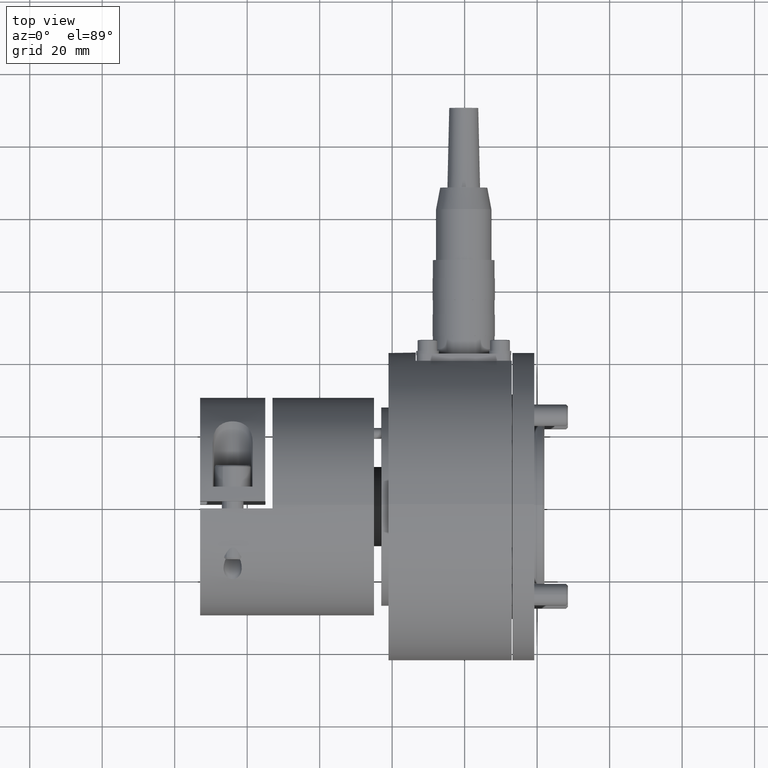
[diagram: clean part render]
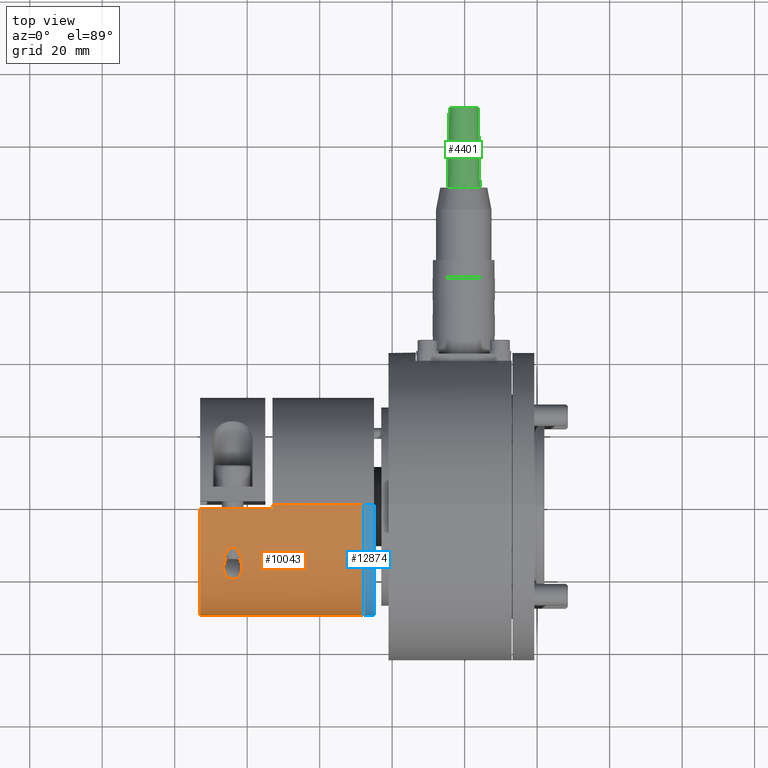
[diagram: same view with three faces highlighted in distinct colors, each labeled with its STEP entity id]
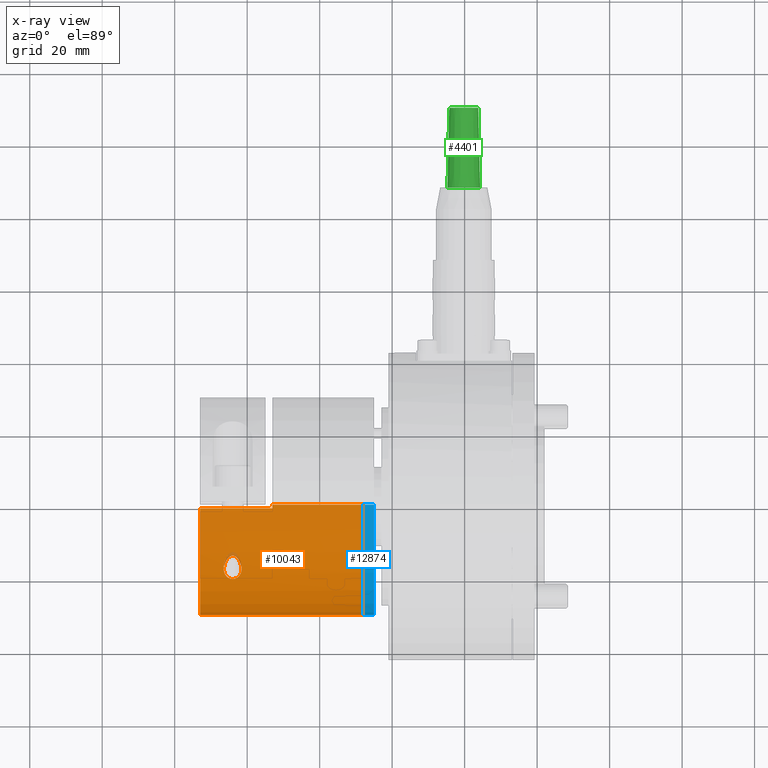
[diagram: x-ray of the same camera — body ghosted, the three highlighted faces saturated]
A machine part, top view with three faces highlighted in distinct colors.
The next image is the same camera in x-ray (body ghosted, the three faces saturated) — at least one of them is partly hidden behind the body in this view.
Their STEP definitions:

[orange] entity #10043 — the highlighted cylindrical surface (partial cylindrical patch) has radius 30 mm, axis along (1, 0, 0).
#63 = CARTESIAN_POINT ( 'NONE',  ( 35.54403130544288558, -13.15764013668180610, -26.96067083644440032 ) ) ;
#99 = EDGE_CURVE ( 'NONE', #7087, #18892, #10793, .T. ) ;
#199 = CARTESIAN_POINT ( 'NONE',  ( 35.76408599306877534, -20.39607805437113441, -22.00000000000001066 ) ) ;
#263 = CARTESIAN_POINT ( 'NONE',  ( 34.03343299537669253, -19.32475668754031517, -22.94773513613678517 ) ) ;
#388 = CARTESIAN_POINT ( 'NONE',  ( 35.53760434968018700, -20.36077404736876773, -22.03286248311609086 ) ) ;
#475 = VERTEX_POINT ( 'NONE', #8121 ) ;
#550 = EDGE_CURVE ( 'NONE', #475, #4645, #6410, .T. ) ;
#551 = CARTESIAN_POINT ( 'NONE',  ( 37.85599759558347444, -19.48080813370034292, -22.81523536716307632 ) ) ;
#600 = VERTEX_POINT ( 'NONE', #14495 ) ;
#623 = EDGE_CURVE ( 'NONE', #4307, #4998, #15329, .T. ) ;
#729 = CARTESIAN_POINT ( 'NONE',  ( 36.11634415302829382, -13.07669683062198729, -27.00000000000000711 ) ) ;
#752 = CARTESIAN_POINT ( 'NONE',  ( 36.45809840492726295, -20.35322536426288309, 22.03966328793654839 ) ) ;
#859 = CARTESIAN_POINT ( 'NONE',  ( 8.050388051616229390, -19.71798243178388432, 22.61000125630623003 ) ) ;
#879 = VECTOR ( 'NONE', #8178, 1000.000000000000000 ) ;
#890 = CARTESIAN_POINT ( 'NONE',  ( -9.653853281810471643, 0.000000000000000000, 0.000000000000000000 ) ) ;
#973 = CARTESIAN_POINT ( 'NONE',  ( 35.10277254796164925, -20.22703264770207099, 22.15570725160227639 ) ) ;
#982 = ORIENTED_EDGE ( 'NONE', *, *, #8102, .T. ) ;
#990 = CARTESIAN_POINT ( 'NONE',  ( 36.85659834316125227, -13.36723720463445808, -26.85762360968974960 ) ) ;
#1065 = DIRECTION ( 'NONE',  ( 0.000000000000000000, 0.000000000000000000, 1.000000000000000000 ) ) ;
#1186 = CARTESIAN_POINT ( 'NONE',  ( 8.053247955870300956, -22.60949184848589866, 19.71856837036116872 ) ) ;
#1201 = CARTESIAN_POINT ( 'NONE',  ( 0.000000000000000000, 0.000000000000000000, 0.000000000000000000 ) ) ;
#1299 = CARTESIAN_POINT ( 'NONE',  ( 38.15214006560779580, -19.00000907116052673, 23.21733092695185263 ) ) ;
#1313 = CARTESIAN_POINT ( 'NONE',  ( 24.99999999999999645, 0.000000000000000000, 0.000000000000000000 ) ) ;
#1322 = AXIS2_PLACEMENT_3D ( 'NONE', #4834, #1804, #16760 ) ;
#1399 = CARTESIAN_POINT ( 'NONE',  ( 33.74519410774001926, -15.66326118771873688, -25.58734810933013293 ) ) ;
#1586 = CARTESIAN_POINT ( 'NONE',  ( 35.43942614881169817, -13.20304902364685340, -26.93850896033865894 ) ) ;
#1698 = EDGE_LOOP ( 'NONE', ( #1972, #982 ) ) ;
#1784 = EDGE_CURVE ( 'NONE', #6906, #3676, #4431, .T. ) ;
#1804 = DIRECTION ( 'NONE',  ( -1.000000000000000000, -0.000000000000000000, -0.000000000000000000 ) ) ;
#1874 = EDGE_CURVE ( 'NONE', #4107, #11514, #18491, .T. ) ;
#1972 = ORIENTED_EDGE ( 'NONE', *, *, #550, .T. ) ;
#1985 = CARTESIAN_POINT ( 'NONE',  ( 5.399951019170280198, -21.11685314552640946, 21.30955857452089930 ) ) ;
#2056 = CARTESIAN_POINT ( 'NONE',  ( 5.916764265090246333, -20.21019176594783318, 22.17110251399250842 ) ) ;
#2142 = DIRECTION ( 'NONE',  ( 1.000000000000000000, 0.000000000000000000, 0.000000000000000000 ) ) ;
#2182 = CARTESIAN_POINT ( 'NONE',  ( 5.677929886991131880, -20.45571093135717433, 21.94485935220675543 ) ) ;
#2248 = CARTESIAN_POINT ( 'NONE',  ( 38.24517357150050856, -18.83693687243285453, -23.35268812621419343 ) ) ;
#2252 = CARTESIAN_POINT ( 'NONE',  ( 6.954521571183967410, -19.72723343274339669, 22.60170315644595362 ) ) ;
#2348 = CARTESIAN_POINT ( 'NONE',  ( 8.790163230429689278, -19.99285569627467751, 22.36790642746595736 ) ) ;
#2518 = CARTESIAN_POINT ( 'NONE',  ( 35.42785093954138631, -20.32715191897705509, 22.06374737550954279 ) ) ;
#2540 = CARTESIAN_POINT ( 'NONE',  ( 9.533412983282273601, -21.59332378777918748, 20.82657874129382947 ) ) ;
#2548 = CARTESIAN_POINT ( 'NONE',  ( 36.00000000000000711, -13.07669683062227151, 27.00000000000002487 ) ) ;
#2585 = CARTESIAN_POINT ( 'NONE',  ( 35.14174589274028193, -13.36850734203602897, 26.85699216930185074 ) ) ;
#2605 = CARTESIAN_POINT ( 'NONE',  ( 37.10514268870819876, -13.59271204247487397, 26.74408264683101422 ) ) ;
#2621 = CARTESIAN_POINT ( 'NONE',  ( 7.500000000000000000, -19.67624302409927139, 22.64609150508282909 ) ) ;
#2622 = DIRECTION ( 'NONE',  ( -1.000000000000000000, -0.000000000000000000, -0.000000000000000000 ) ) ;
#2661 = CARTESIAN_POINT ( 'NONE',  ( 38.22861321011357916, -18.82811773892880325, 23.35705405547113500 ) ) ;
#2735 = CARTESIAN_POINT ( 'NONE',  ( 9.169452788030255874, -20.28797255858072646, 22.10002741749822874 ) ) ;
#2756 = CARTESIAN_POINT ( 'NONE',  ( 34.97572533438203379, -13.51693487034870955, -26.78242922220515965 ) ) ;
#2803 = CARTESIAN_POINT ( 'NONE',  ( 9.586569503635979927, -21.40611070378705350, 21.01895427485382939 ) ) ;
#2820 = DIRECTION ( 'NONE',  ( -1.000000000000000000, 0.000000000000000000, 0.000000000000000000 ) ) ;
#2825 = CARTESIAN_POINT ( 'NONE',  ( 34.30647323838091722, -14.35189158418099709, -26.34507634120158315 ) ) ;
#2889 = CARTESIAN_POINT ( 'NONE',  ( 33.53307291488608399, -16.61453878675507312, -24.98342915950209431 ) ) ;
#3002 = EDGE_CURVE ( 'NONE', #11161, #5378, #12203, .T. ) ;
#3235 = FACE_BOUND ( 'NONE', #12058, .T. ) ;
#3339 = EDGE_LOOP ( 'NONE', ( #4364, #12761 ) ) ;
#3500 = B_SPLINE_CURVE_WITH_KNOTS ( 'NONE', 3,
 ( #5870, #4541, #16281, #63, #1586, #19427, #10444, #2756, #13253, #4289, #17783, #2825, #16351, #17853, #8882, #19358, #1399, #13459, #2889, #4412, #16847, #7655, #15103, #263, #9217, #12259, #12316, #15171, #16781, #388, #199, #4603 ),
 .UNSPECIFIED., .F., .F.,
 ( 4, 2, 2, 2, 2, 2, 2, 2, 2, 2, 2, 2, 2, 2, 2, 4 ),
 ( 0.01110041904918949128, 0.01144809869222177152, 0.01179577833525405350, 0.01214345797828633375, 0.01249113762131861399, 0.01318649690738319183, 0.01388185619344777140, 0.01457721547951234924, 0.01527257476557692707, 0.01666329333770610183, 0.01805401190983527832, 0.01944473048196445480, 0.02014008976802904652, 0.02083544905409364170, 0.02153080834015823689, 0.02222616762622283207 ),
 .UNSPECIFIED. ) ;
#3519 = CARTESIAN_POINT ( 'NONE',  ( 36.23537691134919925, -20.39607805437113086, -22.00000000000001421 ) ) ;
#3523 = CARTESIAN_POINT ( 'NONE',  ( 5.413616891070321735, -21.01775926357863966, 21.40728707709009626 ) ) ;
#3548 = EDGE_CURVE ( 'NONE', #4998, #4307, #18331, .T. ) ;
#3587 = CARTESIAN_POINT ( 'NONE',  ( 6.569147713251338061, -19.83658000979079006, 22.50584106918732630 ) ) ;
#3652 = CARTESIAN_POINT ( 'NONE',  ( 6.956257584775492830, -22.60199293863285774, 19.72690119807969111 ) ) ;
#3676 = VERTEX_POINT ( 'NONE', #5501 ) ;
#3721 = CARTESIAN_POINT ( 'NONE',  ( 5.829968255449136549, -20.28856347131808135, 22.09948311535089971 ) ) ;
#3916 = CARTESIAN_POINT ( 'NONE',  ( 33.75456495062579165, -18.83623518361320848, 23.35325185157929795 ) ) ;
#4107 = VERTEX_POINT ( 'NONE', #4881 ) ;
#4126 = CARTESIAN_POINT ( 'NONE',  ( 38.06735434347587699, -15.08921624168724307, 25.93251678761911450 ) ) ;
#4131 = CARTESIAN_POINT ( 'NONE',  ( 9.599887512783961796, -21.11400427086853426, 21.31239146466164769 ) ) ;
#4275 = CARTESIAN_POINT ( 'NONE',  ( 9.493195183361935463, -21.68558841424887973, 20.73044786103286796 ) ) ;
#4282 = EDGE_CURVE ( 'NONE', #5378, #6887, #8403, .T. ) ;
#4289 = CARTESIAN_POINT ( 'NONE',  ( 34.66971698157021109, -13.82811041623600445, -26.62357391991033495 ) ) ;
#4307 = VERTEX_POINT ( 'NONE', #2621 ) ;
#4325 = CARTESIAN_POINT ( 'NONE',  ( 37.69447132693836267, -14.35344217299058656, 26.34423547105264518 ) ) ;
#4329 = CARTESIAN_POINT ( 'NONE',  ( 9.082767666520947358, -22.17134987099493060, 20.20991500627982873 ) ) ;
#4364 = ORIENTED_EDGE ( 'NONE', *, *, #99, .T. ) ;
#4412 = CARTESIAN_POINT ( 'NONE',  ( 33.48649451730572935, -17.37805972478663108, -24.45848874861645328 ) ) ;
#4431 = LINE ( 'NONE', #15145, #10986 ) ;
#4529 = CARTESIAN_POINT ( 'NONE',  ( 24.99999999999999645, 0.000000000000000000, 30.00000000000000000 ) ) ;
#4537 = CARTESIAN_POINT ( 'NONE',  ( 35.99999999999953815, -13.07669683062154498, -27.00000000000023448 ) ) ;
#4541 = CARTESIAN_POINT ( 'NONE',  ( 35.88339036668130433, -13.07669683062207078, -26.99999999999997868 ) ) ;
#4603 = CARTESIAN_POINT ( 'NONE',  ( 36.00000000000000000, -20.39607805437112731, -22.00000000000001066 ) ) ;
#4645 = VERTEX_POINT ( 'NONE', #4537 ) ;
#4834 = CARTESIAN_POINT ( 'NONE',  ( 45.00000000000000000, 0.000000000000000000, 0.000000000000000000 ) ) ;
#4881 = CARTESIAN_POINT ( 'NONE',  ( 45.00000000000000000, -1.000000000000000444, -29.98332870112989568 ) ) ;
#4888 = ORIENTED_EDGE ( 'NONE', *, *, #1874, .T. ) ;
#4998 = VERTEX_POINT ( 'NONE', #8092 ) ;
#5018 = CARTESIAN_POINT ( 'NONE',  ( 36.89567724093629408, -20.22760951571456545, -22.15517897535722724 ) ) ;
#5024 = CARTESIAN_POINT ( 'NONE',  ( 6.112790530821605728, -20.06465382949635057, 22.30289901794895613 ) ) ;
#5140 = LINE ( 'NONE', #18827, #12632 ) ;
#5219 = CARTESIAN_POINT ( 'NONE',  ( 5.612162170226675073, -20.54554845541357011, 21.86084670257604046 ) ) ;
#5292 = CARTESIAN_POINT ( 'NONE',  ( 34.55693531138594921, -19.90198451976577942, 22.44849183637207446 ) ) ;
#5378 = VERTEX_POINT ( 'NONE', #4529 ) ;
#5444 = CARTESIAN_POINT ( 'NONE',  ( 33.93270928708697909, -15.08878819167141927, 25.93278706445213899 ) ) ;
#5501 = CARTESIAN_POINT ( 'NONE',  ( 0.000000000000000000, 3.673940397442059967E-15, -30.00000000000000711 ) ) ;
#5503 = AXIS2_PLACEMENT_3D ( 'NONE', #17848, #2820, #13322 ) ;
#5773 = CARTESIAN_POINT ( 'NONE',  ( 38.20553756739808904, -15.47446950072273886, 25.70490763626187203 ) ) ;
#5777 = CARTESIAN_POINT ( 'NONE',  ( 9.600111120466346293, -21.31000663040397214, 21.11641124115025647 ) ) ;
#5853 = CARTESIAN_POINT ( 'NONE',  ( 8.889167738303978439, -22.30164922157576868, 20.06603751767924493 ) ) ;
#5870 = CARTESIAN_POINT ( 'NONE',  ( 35.99999999999953815, -13.07669683062154498, -27.00000000000023448 ) ) ;
#5873 = VECTOR ( 'NONE', #13149, 1000.000000000000000 ) ;
#6108 = CARTESIAN_POINT ( 'NONE',  ( 37.44009406900512715, -19.90428179142540444, 22.44645024161019364 ) ) ;
#6410 = B_SPLINE_CURVE_WITH_KNOTS ( 'NONE', 3,
 ( #13939, #3519, #14002, #5018, #17013, #18532, #9550, #551, #11062, #2248, #7303, #9043, #17237, #9964, #8292, #9704, #15875, #18894, #18962, #8422, #18758, #12836, #990, #17377, #9906, #14426, #729, #9770 ),
 .UNSPECIFIED., .F., .F.,
 ( 4, 2, 2, 2, 2, 2, 2, 2, 2, 2, 2, 2, 2, 4 ),
 ( 0.000000000000000000, 0.0006937761905743366998, 0.001387552381148673400, 0.002081328571723009991, 0.002775104762297346799, 0.004162657143446035594, 0.005550209524594723089, 0.006937761905743411450, 0.008325314286892100679, 0.009019090477466448763, 0.009712866668040795112, 0.01040664285861514320, 0.01075353095390231897, 0.01110041904918949128 ),
 .UNSPECIFIED. ) ;
#6455 = CARTESIAN_POINT ( 'NONE',  ( 0.000000000000000000, 0.000000000000000000, 30.00000000000000355 ) ) ;
#6623 = CARTESIAN_POINT ( 'NONE',  ( 5.821142335571173554, -22.10681613286423541, 20.28118102899367869 ) ) ;
#6687 = CARTESIAN_POINT ( 'NONE',  ( 7.361202440361829247, -22.64609150508276869, 19.67624302409936021 ) ) ;
#6826 = CARTESIAN_POINT ( 'NONE',  ( 6.822857300636626654, -22.57536873068187333, 19.75741678296466119 ) ) ;
#6834 = CARTESIAN_POINT ( 'NONE',  ( 34.54109359959257830, -13.99621901585741313, 26.53575458206941207 ) ) ;
#6887 = VERTEX_POINT ( 'NONE', #6455 ) ;
#6890 = CARTESIAN_POINT ( 'NONE',  ( 36.88844262200682778, -20.22138937281719961, 22.16076094512581918 ) ) ;
#6899 = CARTESIAN_POINT ( 'NONE',  ( 34.03255055075983648, -19.32336106694990718, 22.94890518216946163 ) ) ;
#6906 = VERTEX_POINT ( 'NONE', #16858 ) ;
#7087 = VERTEX_POINT ( 'NONE', #2548 ) ;
#7112 = CARTESIAN_POINT ( 'NONE',  ( 36.46313121252222800, -13.14879111047487825, 26.96524192666000985 ) ) ;
#7115 = CARTESIAN_POINT ( 'NONE',  ( 8.783575025467426300, -22.35975942582060938, 20.00117678045440783 ) ) ;
#7256 = FACE_OUTER_BOUND ( 'NONE', #9660, .T. ) ;
#7303 = CARTESIAN_POINT ( 'NONE',  ( 38.36318796891579552, -18.48017176730698097, -23.63663672635370361 ) ) ;
#7305 = CARTESIAN_POINT ( 'NONE',  ( 38.46699535813548465, -16.61662256972484997, 24.98197765890463984 ) ) ;
#7393 = CARTESIAN_POINT ( 'NONE',  ( 35.99999999999989342, -20.39607805437118770, 21.99999999999995737 ) ) ;
#7504 = DIRECTION ( 'NONE',  ( -1.000000000000000000, -0.000000000000000000, -0.000000000000000000 ) ) ;
#7551 = LINE ( 'NONE', #8655, #5873 ) ;
#7655 = CARTESIAN_POINT ( 'NONE',  ( 33.63659722610097447, -18.47948538625313120, -23.63717877275215784 ) ) ;
#7901 = ORIENTED_EDGE ( 'NONE', *, *, #623, .T. ) ;
#8065 = CARTESIAN_POINT ( 'NONE',  ( 7.223696195201902981, -19.68664490157274471, 22.63706555632657214 ) ) ;
#8092 = CARTESIAN_POINT ( 'NONE',  ( 7.500000000000000000, -22.64609150508276514, 19.67624302409934955 ) ) ;
#8102 = EDGE_CURVE ( 'NONE', #4645, #475, #3500, .T. ) ;
#8104 = AXIS2_PLACEMENT_3D ( 'NONE', #1201, #2622, #1065 ) ;
#8121 = CARTESIAN_POINT ( 'NONE',  ( 36.00000000000000000, -20.39607805437112731, -22.00000000000001066 ) ) ;
#8178 = DIRECTION ( 'NONE',  ( -1.000000000000000000, -0.000000000000000000, -0.000000000000000000 ) ) ;
#8203 = CARTESIAN_POINT ( 'NONE',  ( 5.506936449903147235, -20.73018666546440869, 21.68583732997826630 ) ) ;
#8292 = CARTESIAN_POINT ( 'NONE',  ( 38.40442604883820366, -16.23492132184638592, -25.23151432158067919 ) ) ;
#8400 = CARTESIAN_POINT ( 'NONE',  ( 33.63667113201717029, -18.47963030384479666, 23.63705726207231805 ) ) ;
#8403 = LINE ( 'NONE', #17125, #879 ) ;
#8418 = EDGE_CURVE ( 'NONE', #6906, #600, #12208, .T. ) ;
#8422 = CARTESIAN_POINT ( 'NONE',  ( 37.45797773958720711, -13.99494657319657875, -26.53642585680615440 ) ) ;
#8467 = CARTESIAN_POINT ( 'NONE',  ( 35.88368538321566348, -20.39607805437112020, 22.00000000000001421 ) ) ;
#8586 = CARTESIAN_POINT ( 'NONE',  ( 33.59551646412336368, -16.23528600519121667, 25.23127550043539458 ) ) ;
#8607 = CARTESIAN_POINT ( 'NONE',  ( 7.500000000000000000, -22.64609150508276514, 19.67624302409934955 ) ) ;
#8655 = CARTESIAN_POINT ( 'NONE',  ( -9.653853281810471643, -0.9999999999999988898, 29.98332870112989212 ) ) ;
#8680 = CARTESIAN_POINT ( 'NONE',  ( 9.171359846319628417, -22.09833214602731033, 20.28981901124419807 ) ) ;
#8738 = CARTESIAN_POINT ( 'NONE',  ( 9.322048568467932839, -20.45564184618385895, 21.94492558776514812 ) ) ;
#8796 = CARTESIAN_POINT ( 'NONE',  ( 38.39635213734254648, -18.29932477879136599, 23.77365590205245027 ) ) ;
#8799 = CARTESIAN_POINT ( 'NONE',  ( 8.432093946250290628, -22.50538862898929793, 19.83709272333016216 ) ) ;
#8857 = EDGE_CURVE ( 'NONE', #18892, #7087, #12070, .T. ) ;
#8873 = DIRECTION ( 'NONE',  ( 0.000000000000000000, 0.000000000000000000, 1.000000000000000000 ) ) ;
#8882 = CARTESIAN_POINT ( 'NONE',  ( 33.94294079543363551, -15.09460535327318986, -25.92684585813091402 ) ) ;
#8978 = EDGE_CURVE ( 'NONE', #11514, #11161, #7551, .T. ) ;
#9043 = CARTESIAN_POINT ( 'NONE',  ( 38.49636620563748579, -17.75429333462718517, -24.18661639152519882 ) ) ;
#9065 = AXIS2_PLACEMENT_3D ( 'NONE', #890, #15981, #15906 ) ;
#9217 = CARTESIAN_POINT ( 'NONE',  ( 34.14492504964775321, -19.48194992579282570, -22.81425661019097006 ) ) ;
#9488 = CARTESIAN_POINT ( 'NONE',  ( 7.500000000000000000, -22.64609150508276514, 19.67624302409934955 ) ) ;
#9550 = CARTESIAN_POINT ( 'NONE',  ( 37.59227195770927210, -19.77118210803321929, -22.56406896931671113 ) ) ;
#9660 = EDGE_LOOP ( 'NONE', ( #18038, #19114, #16095, #4888, #15328, #12081, #14084, #12342 ) ) ;
#9704 = CARTESIAN_POINT ( 'NONE',  ( 38.20470176304846888, -15.47182261984939977, -25.70651065599122020 ) ) ;
#9742 = CARTESIAN_POINT ( 'NONE',  ( 6.446384952211624331, -19.88598597413896840, 22.46226532258497244 ) ) ;
#9748 = CARTESIAN_POINT ( 'NONE',  ( 34.20524229729677046, -14.53274498227888145, 26.24584856288481660 ) ) ;
#9770 = CARTESIAN_POINT ( 'NONE',  ( 35.99999999999953815, -13.07669683062154498, -27.00000000000023448 ) ) ;
#9824 = CARTESIAN_POINT ( 'NONE',  ( 33.48654048068633671, -17.38157899537326756, 24.45598570427973328 ) ) ;
#9891 = CARTESIAN_POINT ( 'NONE',  ( 33.79505814167709588, -15.47259514341117814, 25.70604159681762724 ) ) ;
#9906 = CARTESIAN_POINT ( 'NONE',  ( 36.45302881729313782, -13.15673440856591014, -26.96111182653448068 ) ) ;
#9964 = CARTESIAN_POINT ( 'NONE',  ( 38.46737965062658304, -16.61789723448560707, -24.98119944198819553 ) ) ;
#10043 = ADVANCED_FACE ( 'NONE', ( #7256, #3235, #18247, #16620 ), #14262, .T. ) ;
#10092 = CARTESIAN_POINT ( 'NONE',  ( 37.46213815446620288, -14.00072759769704867, 26.53336901908119572 ) ) ;
#10153 = CARTESIAN_POINT ( 'NONE',  ( 9.323466698358155114, -21.94323569480162561, 20.45745454321172119 ) ) ;
#10199 = CARTESIAN_POINT ( 'NONE',  ( 34.97003614068877653, -13.51417719926148564, 26.78428395338516310 ) ) ;
#10291 = CARTESIAN_POINT ( 'NONE',  ( 38.35052744246493006, -18.47788787857473380, 23.63509363823184017 ) ) ;
#10340 = CARTESIAN_POINT ( 'NONE',  ( 35.53711436873646079, -13.14865470787962742, 26.96530912689426529 ) ) ;
#10444 = CARTESIAN_POINT ( 'NONE',  ( 35.14785877451151208, -13.37795189328988421, -26.85212182440150031 ) ) ;
#10454 = CIRCLE ( 'NONE', #8104, 30.00000000000000355 ) ;
#10793 = B_SPLINE_CURVE_WITH_KNOTS ( 'NONE', 3,
 ( #17633, #13025, #7112, #19141, #17496, #13230, #2605, #11731, #10092, #4325, #14757, #4126, #5773, #14624, #7305, #19279, #17757, #8796, #10291, #2661, #1299, #13303, #14825, #12045, #6108, #15282, #18273, #6890, #15453, #15639, #752, #15522, #14717, #7393 ),
 .UNSPECIFIED., .F., .F.,
 ( 4, 2, 2, 2, 2, 2, 2, 2, 2, 2, 2, 2, 2, 2, 2, 2, 4 ),
 ( 7.050749370775813149E-17, 0.0006968621591076512318, 0.001045293238661440310, 0.001393724318215229388, 0.002090586477322807762, 0.002787448636430385918, 0.004181172954645542665, 0.005574897272860695509, 0.006968621591075848352, 0.007665483750183428244, 0.008362345909291009002, 0.009059208068398588026, 0.009756070227506167050, 0.01010450130705996263, 0.01045293238661375822, 0.01080136346616755380, 0.01114979454572134765 ),
 .UNSPECIFIED. ) ;
#10986 = VECTOR ( 'NONE', #7504, 1000.000000000000000 ) ;
#11062 = CARTESIAN_POINT ( 'NONE',  ( 37.96690485198661236, -19.32419319876482788, -22.94820506228913004 ) ) ;
#11066 = CARTESIAN_POINT ( 'NONE',  ( 6.219668528706750799, -22.36138455129565372, 19.99935771579663779 ) ) ;
#11124 = CARTESIAN_POINT ( 'NONE',  ( 6.447929059487561787, -22.46288029968400579, 19.88529197013176386 ) ) ;
#11161 = VERTEX_POINT ( 'NONE', #15198 ) ;
#11197 = CARTESIAN_POINT ( 'NONE',  ( 7.224733051604038891, -22.63713941487447201, 19.68655974994981506 ) ) ;
#11353 = CARTESIAN_POINT ( 'NONE',  ( 8.555843981380760965, -19.87550317785966669, 22.47165684628521376 ) ) ;
#11514 = VERTEX_POINT ( 'NONE', #14185 ) ;
#11544 = CARTESIAN_POINT ( 'NONE',  ( 9.586192875783405398, -21.01689981032182075, 21.40812787738621026 ) ) ;
#11731 = CARTESIAN_POINT ( 'NONE',  ( 37.33028637808858008, -13.82821087149201134, 26.62351767243061929 ) ) ;
#11844 = CARTESIAN_POINT ( 'NONE',  ( 35.76405993019931628, -13.07669683062203347, 26.99999999999998579 ) ) ;
#12045 = CARTESIAN_POINT ( 'NONE',  ( 37.59138569244880301, -19.77208482503668918, 22.56328299299559603 ) ) ;
#12058 = EDGE_LOOP ( 'NONE', ( #14572, #7901 ) ) ;
#12070 = B_SPLINE_CURVE_WITH_KNOTS ( 'NONE', 3,
 ( #14281, #8467, #14408, #18942, #2518, #973, #15857, #5292, #12949, #17551, #6899, #3916, #8400, #14474, #9824, #18873, #8586, #9891, #5444, #9748, #15794, #6834, #17289, #10199, #2585, #10340, #11844, #16375 ),
 .UNSPECIFIED., .F., .F.,
 ( 4, 2, 2, 2, 2, 2, 2, 2, 2, 2, 2, 2, 2, 4 ),
 ( 0.01114979454572134765, 0.01149795092838507872, 0.01184610731104881153, 0.01254242007637628060, 0.01323873284170374968, 0.01393504560703121876, 0.01532767113768615866, 0.01672029666834109682, 0.01811292219899603845, 0.01950554772965098355, 0.02020186049497845610, 0.02089817326030592518, 0.02159448602563339772, 0.02229079879096087027 ),
 .UNSPECIFIED. ) ;
#12081 = ORIENTED_EDGE ( 'NONE', *, *, #3002, .T. ) ;
#12203 = CIRCLE ( 'NONE', #5503, 30.00000000000000000 ) ;
#12208 = CIRCLE ( 'NONE', #17680, 30.00000000000000000 ) ;
#12259 = CARTESIAN_POINT ( 'NONE',  ( 34.40825293860283551, -19.77163343106848359, -22.56366967171333471 ) ) ;
#12316 = CARTESIAN_POINT ( 'NONE',  ( 34.55857495603410001, -19.90338543958648287, -22.44725216242035515 ) ) ;
#12342 = ORIENTED_EDGE ( 'NONE', *, *, #14764, .F. ) ;
#12491 = CARTESIAN_POINT ( 'NONE',  ( 5.467258828292914430, -20.82467628626860545, 21.59516154222553652 ) ) ;
#12548 = CARTESIAN_POINT ( 'NONE',  ( 6.218961404439988350, -19.99978946317342476, 22.36099780901095713 ) ) ;
#12549 = EDGE_CURVE ( 'NONE', #600, #4107, #5140, .T. ) ;
#12632 = VECTOR ( 'NONE', #2142, 1000.000000000000000 ) ;
#12761 = ORIENTED_EDGE ( 'NONE', *, *, #8857, .T. ) ;
#12836 = CARTESIAN_POINT ( 'NONE',  ( 37.02845214737822488, -13.51279814098841925, -26.78497994489562117 ) ) ;
#12949 = CARTESIAN_POINT ( 'NONE',  ( 34.40679361711627848, -19.77028763855562232, 22.56485213677640189 ) ) ;
#13025 = CARTESIAN_POINT ( 'NONE',  ( 36.23612622753501711, -13.07669683062203170, 26.99999999999998579 ) ) ;
#13149 = DIRECTION ( 'NONE',  ( -1.000000000000000000, -0.000000000000000000, -0.000000000000000000 ) ) ;
#13230 = CARTESIAN_POINT ( 'NONE',  ( 37.02532313074250681, -13.51784452054103447, 26.78197103811618263 ) ) ;
#13234 = CARTESIAN_POINT ( 'NONE',  ( 9.080750645005441157, -20.20822154972524487, 22.17289248174906291 ) ) ;
#13253 = CARTESIAN_POINT ( 'NONE',  ( 34.89578590685911763, -13.59178950792956897, -26.74455251935003020 ) ) ;
#13303 = CARTESIAN_POINT ( 'NONE',  ( 37.96593993087869023, -19.32571375563456328, 22.94692981448835312 ) ) ;
#13308 = CARTESIAN_POINT ( 'NONE',  ( 9.387895750223863800, -21.86078030232767944, 20.54561992164191153 ) ) ;
#13322 = DIRECTION ( 'NONE',  ( 0.000000000000000000, 0.000000000000000000, 1.000000000000000000 ) ) ;
#13459 = CARTESIAN_POINT ( 'NONE',  ( 33.59593662787168711, -16.23353026123997367, -25.23238063418413901 ) ) ;
#13939 = CARTESIAN_POINT ( 'NONE',  ( 36.00000000000000000, -20.39607805437112731, -22.00000000000001066 ) ) ;
#14002 = CARTESIAN_POINT ( 'NONE',  ( 36.46348548831758762, -20.36051881642763561, -22.03309818605258386 ) ) ;
#14084 = ORIENTED_EDGE ( 'NONE', *, *, #4282, .T. ) ;
#14140 = CARTESIAN_POINT ( 'NONE',  ( 6.823597933132545812, -19.75722431448976479, 22.57553711660667162 ) ) ;
#14185 = CARTESIAN_POINT ( 'NONE',  ( 45.00000000000000000, -1.000000000000000444, 29.98332870112988502 ) ) ;
#14262 = CYLINDRICAL_SURFACE ( 'NONE', #9065, 30.00000000000000000 ) ;
#14281 = CARTESIAN_POINT ( 'NONE',  ( 35.99999999999989342, -20.39607805437118770, 21.99999999999995737 ) ) ;
#14408 = CARTESIAN_POINT ( 'NONE',  ( 35.76595399513405482, -20.38709376648254690, 22.00833840752609305 ) ) ;
#14426 = CARTESIAN_POINT ( 'NONE',  ( 36.23325910767670166, -13.09414464103760523, -26.99156511468027730 ) ) ;
#14474 = CARTESIAN_POINT ( 'NONE',  ( 33.50361667174818336, -17.75397324315987646, 24.18684862189423157 ) ) ;
#14495 = CARTESIAN_POINT ( 'NONE',  ( 24.99999999999999645, -0.9999999999999995559, -29.98332870112989212 ) ) ;
#14572 = ORIENTED_EDGE ( 'NONE', *, *, #3548, .T. ) ;
#14624 = CARTESIAN_POINT ( 'NONE',  ( 38.40471593990264410, -16.23657854920496746, 25.23043796554174278 ) ) ;
#14717 = CARTESIAN_POINT ( 'NONE',  ( 36.11640638951927684, -20.39607805437113086, 22.00000000000000711 ) ) ;
#14757 = CARTESIAN_POINT ( 'NONE',  ( 37.79587904836974133, -14.53488467447532884, 26.24465842665587090 ) ) ;
#14764 = EDGE_CURVE ( 'NONE', #3676, #6887, #10454, .T. ) ;
#14825 = CARTESIAN_POINT ( 'NONE',  ( 37.85605156739919863, -19.48082158025043853, 22.81522886821212026 ) ) ;
#14903 = DIRECTION ( 'NONE',  ( -1.000000000000000000, 0.000000000000000000, 0.000000000000000000 ) ) ;
#15103 = CARTESIAN_POINT ( 'NONE',  ( 33.75446133064492926, -18.83635371181874874, -23.35317653954030703 ) ) ;
#15145 = CARTESIAN_POINT ( 'NONE',  ( -9.653853281810471643, 3.673940397442059178E-15, -30.00000000000000000 ) ) ;
#15171 = CARTESIAN_POINT ( 'NONE',  ( 34.90983650185621201, -20.13358471292334784, -22.24101275139170397 ) ) ;
#15198 = CARTESIAN_POINT ( 'NONE',  ( 24.99999999999999645, -0.9999999999999995559, 29.98332870112989212 ) ) ;
#15282 = CARTESIAN_POINT ( 'NONE',  ( 37.17836231126701563, -20.07577154775027850, 22.29280797214492793 ) ) ;
#15328 = ORIENTED_EDGE ( 'NONE', *, *, #8978, .T. ) ;
#15329 = B_SPLINE_CURVE_WITH_KNOTS ( 'NONE', 3,
 ( #15813, #18826, #859, #11353, #2348, #13234, #2735, #8738, #17636, #17570, #16074, #11544, #4131, #5777, #2803, #2540, #4275, #13308, #10153, #8680, #4329, #5853, #7115, #16264, #8799, #1186, #16201, #8607 ),
 .UNSPECIFIED., .F., .F.,
 ( 4, 2, 2, 2, 2, 2, 2, 2, 2, 2, 2, 2, 2, 4 ),
 ( 0.006567564609340414625, 0.007388321336801337465, 0.008209078064262260305, 0.008619456427992720424, 0.009029834791723180543, 0.009440213155453642396, 0.009850591519184102515, 0.01026096988291456437, 0.01067134824664502622, 0.01108172661037548634, 0.01149210497410594820, 0.01190248333783641005, 0.01231286170156687190, 0.01313361842902779734 ),
 .UNSPECIFIED. ) ;
#15453 = CARTESIAN_POINT ( 'NONE',  ( 36.78603036476732058, -20.26138013044937480, 22.12416056875661852 ) ) ;
#15522 = CARTESIAN_POINT ( 'NONE',  ( 36.23127996379901106, -20.38736273828877188, 22.00808899362973747 ) ) ;
#15536 = CARTESIAN_POINT ( 'NONE',  ( 5.400098366430055030, -21.40750088475013868, 21.01889624866358375 ) ) ;
#15639 = CARTESIAN_POINT ( 'NONE',  ( 36.57119182982623329, -20.32734449448758340, 22.06356887416719914 ) ) ;
#15659 = CARTESIAN_POINT ( 'NONE',  ( 6.111629656720541703, -22.30211643092240337, 20.06551789930554719 ) ) ;
#15726 = CARTESIAN_POINT ( 'NONE',  ( 7.500000000000000000, -19.67624302409927139, 22.64609150508282909 ) ) ;
#15794 = CARTESIAN_POINT ( 'NONE',  ( 34.30714435759934133, -14.35059981701538057, 26.34579098967317279 ) ) ;
#15813 = CARTESIAN_POINT ( 'NONE',  ( 7.500000000000000000, -19.67624302409927139, 22.64609150508282909 ) ) ;
#15857 = CARTESIAN_POINT ( 'NONE',  ( 34.90643567639209977, -20.13167768891618081, 22.24273649941153863 ) ) ;
#15875 = CARTESIAN_POINT ( 'NONE',  ( 38.06689335586792566, -15.08776952689369644, -25.93338098573343586 ) ) ;
#15906 = DIRECTION ( 'NONE',  ( 0.000000000000000000, 0.000000000000000000, 1.000000000000000000 ) ) ;
#15981 = DIRECTION ( 'NONE',  ( -1.000000000000000000, -0.000000000000000000, -0.000000000000000000 ) ) ;
#16074 = CARTESIAN_POINT ( 'NONE',  ( 9.532641302183959553, -20.82449247120558766, 21.59533584291589747 ) ) ;
#16095 = ORIENTED_EDGE ( 'NONE', *, *, #12549, .T. ) ;
#16201 = CARTESIAN_POINT ( 'NONE',  ( 7.777531261840769261, -22.64609150508278290, 19.67624302409936021 ) ) ;
#16264 = CARTESIAN_POINT ( 'NONE',  ( 8.554431321201938943, -22.46200922668478484, 19.88627807519270618 ) ) ;
#16281 = CARTESIAN_POINT ( 'NONE',  ( 35.76822842714548756, -13.09365297782503035, -26.99180463796033891 ) ) ;
#16351 = CARTESIAN_POINT ( 'NONE',  ( 34.20479895725731723, -14.53355146879660253, -26.24540412181318771 ) ) ;
#16375 = CARTESIAN_POINT ( 'NONE',  ( 36.00000000000000711, -13.07669683062227151, 27.00000000000002487 ) ) ;
#16620 = FACE_BOUND ( 'NONE', #1698, .T. ) ;
#16760 = DIRECTION ( 'NONE',  ( 0.000000000000000000, 0.000000000000000000, 1.000000000000000000 ) ) ;
#16781 = CARTESIAN_POINT ( 'NONE',  ( 35.10471585120476590, -20.22781004793166559, -22.15499604316608284 ) ) ;
#16847 = CARTESIAN_POINT ( 'NONE',  ( 33.50351082091640365, -17.75313744831738205, -24.18747012849707545 ) ) ;
#16858 = CARTESIAN_POINT ( 'NONE',  ( 24.99999999999999645, 3.673940397442059178E-15, -30.00000000000000000 ) ) ;
#17013 = CARTESIAN_POINT ( 'NONE',  ( 37.09214186575110261, -20.13244924300090588, -22.24203764274756523 ) ) ;
#17084 = CARTESIAN_POINT ( 'NONE',  ( 7.362922282733364021, -19.67624302409927139, 22.64609150508283264 ) ) ;
#17125 = CARTESIAN_POINT ( 'NONE',  ( -9.653853281810471643, 0.000000000000000000, 30.00000000000000000 ) ) ;
#17152 = CARTESIAN_POINT ( 'NONE',  ( 5.455255480105739352, -21.60015175625009576, 20.82059927319721382 ) ) ;
#17214 = CARTESIAN_POINT ( 'NONE',  ( 6.568540694908194588, -22.50564013907231597, 19.83680803941499704 ) ) ;
#17237 = CARTESIAN_POINT ( 'NONE',  ( 38.51347781631667999, -17.38170368442015601, -24.45590339945206537 ) ) ;
#17289 = CARTESIAN_POINT ( 'NONE',  ( 34.67088859301831150, -13.82688058104383622, 26.62420375647239013 ) ) ;
#17377 = CARTESIAN_POINT ( 'NONE',  ( 36.55951854142149671, -13.20256679237308362, -26.93874485205480696 ) ) ;
#17496 = CARTESIAN_POINT ( 'NONE',  ( 36.85263903321929746, -13.37829128821499758, 26.85195366031467756 ) ) ;
#17551 = CARTESIAN_POINT ( 'NONE',  ( 34.14339420141538994, -19.48000330997023255, 22.81592199121824294 ) ) ;
#17570 = CARTESIAN_POINT ( 'NONE',  ( 9.492101295333732480, -20.72815289011615647, 21.68778035830129269 ) ) ;
#17633 = CARTESIAN_POINT ( 'NONE',  ( 36.00000000000000711, -13.07669683062227151, 27.00000000000002487 ) ) ;
#17636 = CARTESIAN_POINT ( 'NONE',  ( 9.386601715311011063, -20.54373206421285047, 21.86255273246429809 ) ) ;
#17680 = AXIS2_PLACEMENT_3D ( 'NONE', #1313, #14903, #8873 ) ;
#17757 = CARTESIAN_POINT ( 'NONE',  ( 38.49644322024145282, -17.75404946128916350, 24.18680915213127847 ) ) ;
#17783 = CARTESIAN_POINT ( 'NONE',  ( 34.53836936443694583, -14.00007445007600637, -26.53370978322016427 ) ) ;
#17848 = CARTESIAN_POINT ( 'NONE',  ( 24.99999999999999645, 0.000000000000000000, 0.000000000000000000 ) ) ;
#17853 = CARTESIAN_POINT ( 'NONE',  ( 34.02298534885743209, -14.90469849190745322, -26.03642292402663827 ) ) ;
#18038 = ORIENTED_EDGE ( 'NONE', *, *, #1784, .F. ) ;
#18247 = FACE_BOUND ( 'NONE', #3339, .T. ) ;
#18273 = CARTESIAN_POINT ( 'NONE',  ( 37.08439748384959955, -20.12878780433759474, 22.24490537993023054 ) ) ;
#18331 = B_SPLINE_CURVE_WITH_KNOTS ( 'NONE', 3,
 ( #9488, #6687, #11197, #3652, #6826, #17214, #11124, #11066, #15659, #6623, #18658, #17152, #15536, #1985, #3523, #12491, #8203, #5219, #2182, #3721, #2056, #5024, #12548, #9742, #3587, #14140, #2252, #8065, #17084, #15726 ),
 .UNSPECIFIED., .F., .F.,
 ( 4, 2, 2, 2, 2, 2, 2, 2, 2, 2, 2, 2, 2, 2, 4 ),
 ( 0.000000000000000000, 0.0004104727880837725530, 0.0008209455761675451060, 0.001231418364251317442, 0.001641891152335090212, 0.002462836728502638788, 0.003283782304670187797, 0.003694255092753965554, 0.004104727880837744612, 0.004515200668921522803, 0.004925673457005300994, 0.005336146245089079185, 0.005746619033172857376, 0.006157091821256636434, 0.006567564609340414625 ),
 .UNSPECIFIED. ) ;
#18491 = CIRCLE ( 'NONE', #1322, 30.00000000000000000 ) ;
#18532 = CARTESIAN_POINT ( 'NONE',  ( 37.44196010534492558, -19.90287257258149012, -22.44770398911635567 ) ) ;
#18562 = CARTESIAN_POINT ( 'NONE',  ( 35.99999999999989342, -20.39607805437118770, 21.99999999999995737 ) ) ;
#18658 = CARTESIAN_POINT ( 'NONE',  ( 5.664703290832874494, -21.94796175383180881, 20.45362766944850819 ) ) ;
#18758 = CARTESIAN_POINT ( 'NONE',  ( 37.32804870271172604, -13.82557028508053953, -26.62488442303286718 ) ) ;
#18826 = CARTESIAN_POINT ( 'NONE',  ( 7.774092368356011917, -19.67624302409927139, 22.64609150508283264 ) ) ;
#18827 = CARTESIAN_POINT ( 'NONE',  ( -9.653853281810471643, -0.9999999999999988898, -29.98332870112989212 ) ) ;
#18873 = CARTESIAN_POINT ( 'NONE',  ( 33.53258375827079618, -16.61832511170787541, 24.98090862282467839 ) ) ;
#18892 = VERTEX_POINT ( 'NONE', #18562 ) ;
#18894 = CARTESIAN_POINT ( 'NONE',  ( 37.79415216428058955, -14.53161394884507374, -26.24647511007330891 ) ) ;
#18942 = CARTESIAN_POINT ( 'NONE',  ( 35.53879176588692701, -20.35260612606400699, 22.04023537943371025 ) ) ;
#18962 = CARTESIAN_POINT ( 'NONE',  ( 37.69213520554493613, -14.34937518780155052, -26.34645817866422846 ) ) ;
#19114 = ORIENTED_EDGE ( 'NONE', *, *, #8418, .T. ) ;
#19141 = CARTESIAN_POINT ( 'NONE',  ( 36.75929056642335979, -13.31347674334437059, 26.88410463381625348 ) ) ;
#19279 = CARTESIAN_POINT ( 'NONE',  ( 38.51333530514285286, -17.37430762732175893, 24.46108721716778689 ) ) ;
#19358 = CARTESIAN_POINT ( 'NONE',  ( 33.80427627021204984, -15.47340456671490472, -25.70257181756545251 ) ) ;
#19427 = CARTESIAN_POINT ( 'NONE',  ( 35.24110351437860089, -13.31318533199766385, -26.88424938217449878 ) ) ;

[blue] entity #12874 — the highlighted cylindrical surface (partial cylindrical patch) has radius 30 mm, axis along (-1, -0, 0).
#34 = EDGE_CURVE ( 'NONE', #5367, #4918, #5890, .T. ) ;
#49 = DIRECTION ( 'NONE',  ( -1.000000000000000000, -0.000000000000000000, -0.000000000000000000 ) ) ;
#329 = DIRECTION ( 'NONE',  ( 0.000000000000000000, 0.000000000000000000, 1.000000000000000000 ) ) ;
#632 = CARTESIAN_POINT ( 'NONE',  ( 0.000000000000000000, 3.673940397442059178E-15, -30.00000000000000000 ) ) ;
#914 = CYLINDRICAL_SURFACE ( 'NONE', #6327, 30.00000000000000000 ) ;
#1771 = CARTESIAN_POINT ( 'NONE',  ( 0.000000000000000000, 0.000000000000000000, 0.000000000000000000 ) ) ;
#2401 = VERTEX_POINT ( 'NONE', #4811 ) ;
#3405 = CIRCLE ( 'NONE', #7266, 30.00000000000000000 ) ;
#3654 = DIRECTION ( 'NONE',  ( -1.000000000000000000, -0.000000000000000000, -0.000000000000000000 ) ) ;
#4251 = VECTOR ( 'NONE', #3654, 1000.000000000000000 ) ;
#4601 = VECTOR ( 'NONE', #18576, 1000.000000000000000 ) ;
#4784 = ORIENTED_EDGE ( 'NONE', *, *, #15495, .T. ) ;
#4811 = CARTESIAN_POINT ( 'NONE',  ( 3.000000000000000000, 0.000000000000000000, 30.00000000000000000 ) ) ;
#4918 = VERTEX_POINT ( 'NONE', #16924 ) ;
#5072 = DIRECTION ( 'NONE',  ( -1.000000000000000000, -0.000000000000000000, -0.000000000000000000 ) ) ;
#5367 = VERTEX_POINT ( 'NONE', #13450 ) ;
#5862 = FACE_OUTER_BOUND ( 'NONE', #17487, .T. ) ;
#5890 = LINE ( 'NONE', #632, #4251 ) ;
#6327 = AXIS2_PLACEMENT_3D ( 'NONE', #16265, #49, #10494 ) ;
#6414 = DIRECTION ( 'NONE',  ( 0.000000000000000000, 0.000000000000000000, 1.000000000000000000 ) ) ;
#6780 = EDGE_CURVE ( 'NONE', #4918, #11252, #3405, .T. ) ;
#7266 = AXIS2_PLACEMENT_3D ( 'NONE', #1771, #16792, #329 ) ;
#7454 = ORIENTED_EDGE ( 'NONE', *, *, #6780, .F. ) ;
#9596 = CARTESIAN_POINT ( 'NONE',  ( 3.000000000000000000, 0.000000000000000000, 0.000000000000000000 ) ) ;
#10494 = DIRECTION ( 'NONE',  ( 0.000000000000000000, 0.000000000000000000, 1.000000000000000000 ) ) ;
#11210 = ORIENTED_EDGE ( 'NONE', *, *, #11305, .T. ) ;
#11252 = VERTEX_POINT ( 'NONE', #12346 ) ;
#11305 = EDGE_CURVE ( 'NONE', #5367, #2401, #12373, .T. ) ;
#12346 = CARTESIAN_POINT ( 'NONE',  ( 0.000000000000000000, 0.000000000000000000, 30.00000000000000000 ) ) ;
#12373 = CIRCLE ( 'NONE', #15986, 30.00000000000000000 ) ;
#12874 = ADVANCED_FACE ( 'NONE', ( #5862 ), #914, .T. ) ;
#13450 = CARTESIAN_POINT ( 'NONE',  ( 3.000000000000000000, 3.673940397442059178E-15, -30.00000000000000000 ) ) ;
#15387 = CARTESIAN_POINT ( 'NONE',  ( 0.000000000000000000, 0.000000000000000000, 30.00000000000000000 ) ) ;
#15495 = EDGE_CURVE ( 'NONE', #2401, #11252, #16779, .T. ) ;
#15986 = AXIS2_PLACEMENT_3D ( 'NONE', #9596, #5072, #6414 ) ;
#16265 = CARTESIAN_POINT ( 'NONE',  ( 0.000000000000000000, 0.000000000000000000, 0.000000000000000000 ) ) ;
#16288 = ORIENTED_EDGE ( 'NONE', *, *, #34, .F. ) ;
#16779 = LINE ( 'NONE', #15387, #4601 ) ;
#16792 = DIRECTION ( 'NONE',  ( -1.000000000000000000, -0.000000000000000000, -0.000000000000000000 ) ) ;
#16924 = CARTESIAN_POINT ( 'NONE',  ( 0.000000000000000000, 3.673940397442059178E-15, -30.00000000000000000 ) ) ;
#17487 = EDGE_LOOP ( 'NONE', ( #16288, #11210, #4784, #7454 ) ) ;
#18576 = DIRECTION ( 'NONE',  ( -1.000000000000000000, -0.000000000000000000, -0.000000000000000000 ) ) ;

[green] entity #4401 — the highlighted conical surface has half-angle 1.302 deg.
#342 = VERTEX_POINT ( 'NONE', #17688 ) ;
#749 = VERTEX_POINT ( 'NONE', #8931 ) ;
#1100 = VERTEX_POINT ( 'NONE', #8906 ) ;
#1706 = DIRECTION ( 'NONE',  ( 0.9997418355455329753, 0.000000000000000000, -0.02272140532732955243 ) ) ;
#1732 = EDGE_CURVE ( 'NONE', #1100, #342, #4891, .T. ) ;
#2027 = CIRCLE ( 'NONE', #18816, 4.000000000285783841 ) ;
#2169 = ORIENTED_EDGE ( 'NONE', *, *, #1732, .F. ) ;
#3934 = EDGE_CURVE ( 'NONE', #14883, #749, #2027, .T. ) ;
#4401 = ADVANCED_FACE ( 'NONE', ( #18456 ), #6767, .T. ) ;
#4583 = ORIENTED_EDGE ( 'NONE', *, *, #7732, .F. ) ;
#4891 = CIRCLE ( 'NONE', #5855, 4.499999999713923060 ) ;
#5855 = AXIS2_PLACEMENT_3D ( 'NONE', #12233, #7572, #9131 ) ;
#6071 = ORIENTED_EDGE ( 'NONE', *, *, #14975, .T. ) ;
#6727 = VECTOR ( 'NONE', #1706, 999.9999999999998863 ) ;
#6767 = CONICAL_SURFACE ( 'NONE', #19185, 4.499999999711339349, 0.02272336081566975544 ) ;
#7572 = DIRECTION ( 'NONE',  ( 1.000000000000000000, 0.000000000000000000, 0.000000000000000000 ) ) ;
#7732 = EDGE_CURVE ( 'NONE', #14883, #1100, #7821, .T. ) ;
#7821 = LINE ( 'NONE', #15664, #18820 ) ;
#8441 = DIRECTION ( 'NONE',  ( 1.000000000000000000, 0.000000000000000000, 0.000000000000000000 ) ) ;
#8830 = LINE ( 'NONE', #13654, #6727 ) ;
#8906 = CARTESIAN_POINT ( 'NONE',  ( 72.00000000000272848, 49.99999999999999289, 4.499999999713923060 ) ) ;
#8931 = CARTESIAN_POINT ( 'NONE',  ( 50.00000000001136868, 49.99999999999999289, -4.000000000285783841 ) ) ;
#9038 = CARTESIAN_POINT ( 'NONE',  ( 50.00000000001136868, 49.99999999999999289, 0.000000000000000000 ) ) ;
#9109 = EDGE_LOOP ( 'NONE', ( #4583, #14320, #6071, #2169 ) ) ;
#9131 = DIRECTION ( 'NONE',  ( 0.000000000000000000, 0.000000000000000000, -1.000000000000000000 ) ) ;
#10513 = CARTESIAN_POINT ( 'NONE',  ( 50.00000000001136868, 49.99999999999999289, 4.000000000285783841 ) ) ;
#10539 = DIRECTION ( 'NONE',  ( 1.000000000000000000, 0.000000000000000000, 0.000000000000000000 ) ) ;
#12033 = DIRECTION ( 'NONE',  ( 0.000000000000000000, 0.000000000000000000, -1.000000000000000000 ) ) ;
#12233 = CARTESIAN_POINT ( 'NONE',  ( 72.00000000000272848, 49.99999999999999289, 0.000000000000000000 ) ) ;
#13654 = CARTESIAN_POINT ( 'NONE',  ( 71.99999999988904165, 49.99999999999999289, -4.499999999711339349 ) ) ;
#14320 = ORIENTED_EDGE ( 'NONE', *, *, #3934, .T. ) ;
#14883 = VERTEX_POINT ( 'NONE', #10513 ) ;
#14975 = EDGE_CURVE ( 'NONE', #749, #342, #8830, .T. ) ;
#15664 = CARTESIAN_POINT ( 'NONE',  ( 71.99999999988904165, 49.99999999999999289, 4.499999999711339349 ) ) ;
#17396 = CARTESIAN_POINT ( 'NONE',  ( 71.99999999988904165, 49.99999999999999289, 0.000000000000000000 ) ) ;
#17423 = DIRECTION ( 'NONE',  ( 0.9997418355455329753, 2.782569630624375384E-18, 0.02272140532732955243 ) ) ;
#17688 = CARTESIAN_POINT ( 'NONE',  ( 72.00000000000272848, 49.99999999999999289, -4.499999999713923060 ) ) ;
#18456 = FACE_OUTER_BOUND ( 'NONE', #9109, .T. ) ;
#18816 = AXIS2_PLACEMENT_3D ( 'NONE', #9038, #10539, #12033 ) ;
#18820 = VECTOR ( 'NONE', #17423, 999.9999999999998863 ) ;
#18917 = DIRECTION ( 'NONE',  ( 0.000000000000000000, 0.000000000000000000, -1.000000000000000000 ) ) ;
#19185 = AXIS2_PLACEMENT_3D ( 'NONE', #17396, #8441, #18917 ) ;